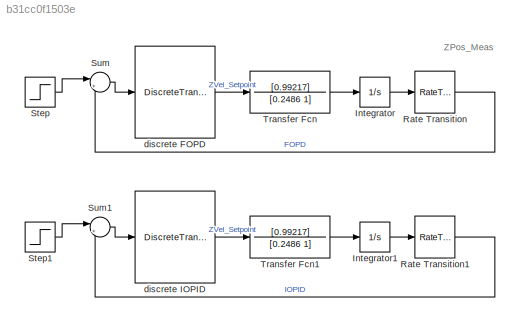
MODEL slx_b31cc0f1503e
KIND model
CONFIG AbsTol = auto
CONFIG EnableMultiTasking = off
CONFIG FixedStep = 0.01
CONFIG MaxStep = auto
CONFIG MinStep = auto
CONFIG RelTol = 1e-3
CONFIG SampleTimeConstraint = Unconstrained
CONFIG Solver = ode14x
CONFIG SolverName = ode14x
CONFIG StartTime = 0.0
CONFIG StopTime = 10.0
BLOCK [Integrator] Integrator
  Ports = [1, 1]
BLOCK [Integrator] Integrator1
  Ports = [1, 1]
BLOCK [RateTransition] Rate Transition
  OutPortSampleTime = 0.01
BLOCK [RateTransition] Rate Transition1
  OutPortSampleTime = 0.01
BLOCK [Step] Step
  SampleTime = 0.01
BLOCK [Step] Step1
  SampleTime = 0.01
BLOCK [Sum] Sum
  IconShape = round
  InputSameDT = off
  Inputs = |+-
  OutDataTypeStr = Inherit: Inherit via internal rule
  Ports = [2, 1]
  SaturateOnIntegerOverflow = off
BLOCK [Sum] Sum1
  IconShape = round
  InputSameDT = off
  Inputs = |+-
  OutDataTypeStr = Inherit: Inherit via internal rule
  Ports = [2, 1]
  SaturateOnIntegerOverflow = off
BLOCK [TransferFcn] Transfer Fcn
  Denominator = [0.2486 1]
  Numerator = [0.99217]
BLOCK [TransferFcn] Transfer Fcn1
  Denominator = [0.2486 1]
  Numerator = [0.99217]
BLOCK [DiscreteTransferFcn] discrete FOPD
  Denominator = [0.0101201839324044,-0.0228427827690589,0.0162967440497079,-0.00320636053105791,-0.000423005899049262,8.95094110425754e-05]
  InputPortMap = u0
  Numerator = [1.72350618609064,-5.70339892298403,7.11891293410561,-4.08227197470563,1.02223847578118,-0.0786444191365231]
  Ports = [1, 1]
  SampleTime = 0.01
BLOCK [DiscreteTransferFcn] discrete IOPID
  Denominator = cd.den{1}
  InputPortMap = u0
  Numerator = cd.num{1}
  Ports = [1, 1]
  SampleTime = 0.01
ANNOTATION (root): ZPos_Meas
LINE Integrator1:1 -> Rate Transition1:1
LINE Integrator:1 -> Rate Transition:1
LINE Rate Transition1:1 -> Sum1:2
LINE Rate Transition:1 -> Sum:2
LINE Step1:1 -> Sum1:1
LINE Step:1 -> Sum:1
LINE Sum1:1 -> discrete IOPID:1
LINE Sum:1 -> discrete FOPD:1
LINE Transfer Fcn1:1 -> Integrator1:1
LINE Transfer Fcn:1 -> Integrator:1
LINE discrete FOPD:1 -> Transfer Fcn:1
LINE discrete IOPID:1 -> Transfer Fcn1:1
